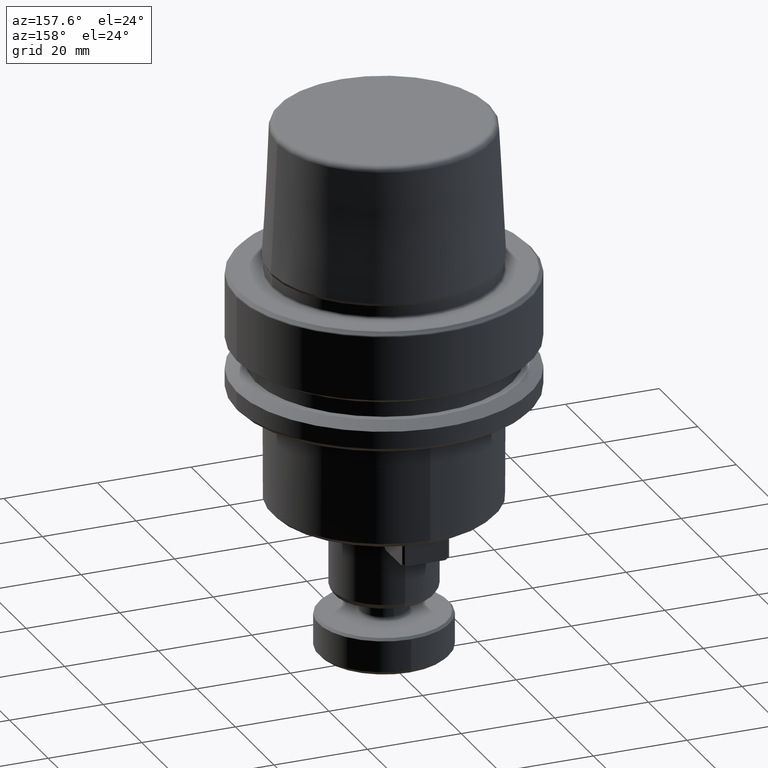
[diagram: clean part render]
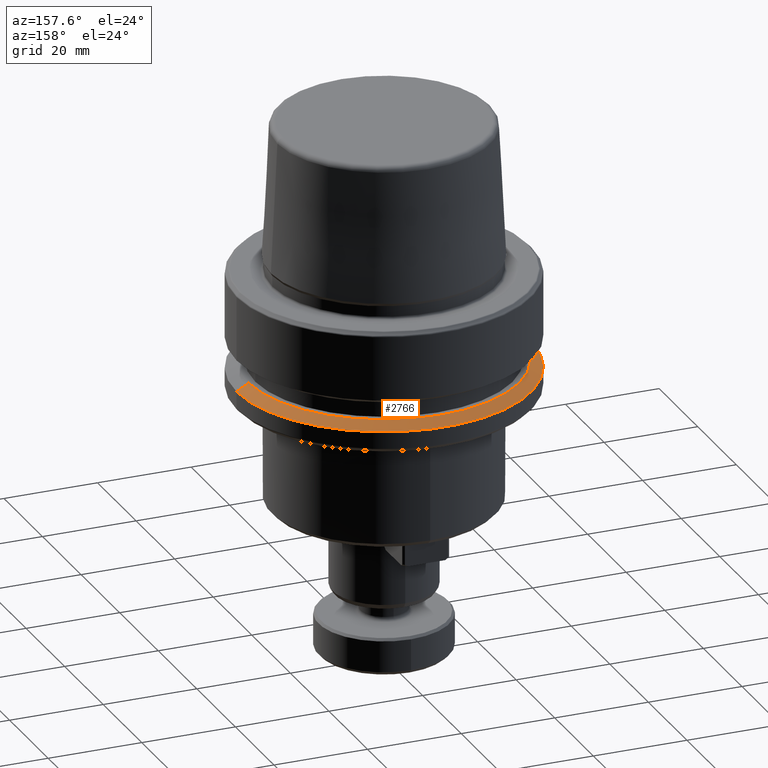
[diagram: same view with one face highlighted and labeled with its STEP entity id]
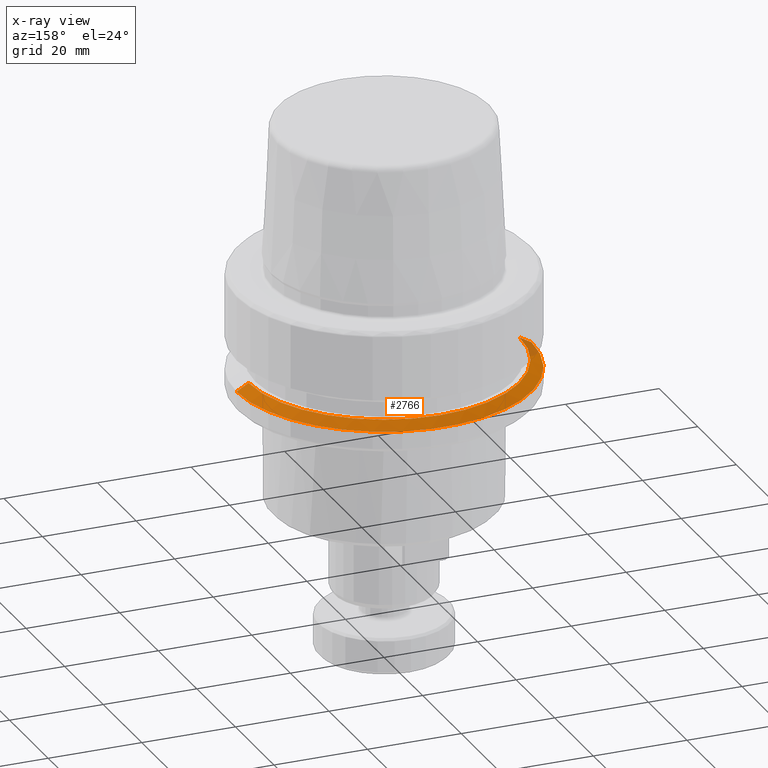
[diagram: x-ray of the same camera — body ghosted, the highlighted face saturated]
A machine part, auxiliary view. The second image highlights one B-rep face of the part: STEP entity #2766.
The next image is the same camera in x-ray: the body ghosted, the highlighted face saturated — about 3% of this face is hidden behind the body in this view.
In plain terms, the highlighted conical surface has half-angle 60 deg.
Its self-contained STEP definition (entity closure, byte-faithful):
#143 = DIRECTION ( 'NONE',  ( -0.8660254037844410400, 0.0000000000000000000, -0.4999999999999958400 ) ) ;
#245 = DIRECTION ( 'NONE',  ( -1.000000000000000000, 0.0000000000000000000, 0.0000000000000000000 ) ) ;
#296 = CARTESIAN_POINT ( 'NONE',  ( 0.0000000000000000000, 0.0000000000000000000, -21.37749907475931700 ) ) ;
#305 = EDGE_CURVE ( 'NONE', #1204, #2134, #2183, .T. ) ;
#393 = DIRECTION ( 'NONE',  ( 1.000000000000000000, 0.0000000000000000000, 0.0000000000000000000 ) ) ;
#408 = DIRECTION ( 'NONE',  ( 1.000000000000000000, 0.0000000000000000000, 0.0000000000000000000 ) ) ;
#424 = AXIS2_PLACEMENT_3D ( 'NONE', #1759, #2264, #408 ) ;
#445 = VECTOR ( 'NONE', #143, 1000.000000000000100 ) ;
#452 = DIRECTION ( 'NONE',  ( 0.8660254037844410400, 1.060575238724909700E-016, -0.4999999999999958400 ) ) ;
#530 = DIRECTION ( 'NONE',  ( 0.0000000000000000000, 0.0000000000000000000, -1.000000000000000000 ) ) ;
#538 = ORIENTED_EDGE ( 'NONE', *, *, #1963, .T. ) ;
#570 = VERTEX_POINT ( 'NONE', #1369 ) ;
#612 = EDGE_LOOP ( 'NONE', ( #1047, #2475, #538, #2454 ) ) ;
#669 = CARTESIAN_POINT ( 'NONE',  ( 28.94089653438085100, 3.700937523921292900E-015, -19.90000000000001600 ) ) ;
#718 = AXIS2_PLACEMENT_3D ( 'NONE', #1806, #1886, #393 ) ;
#728 = VECTOR ( 'NONE', #452, 1000.000000000000100 ) ;
#793 = EDGE_CURVE ( 'NONE', #2134, #570, #2079, .T. ) ;
#908 = EDGE_CURVE ( 'NONE', #1204, #931, #1308, .T. ) ;
#931 = VERTEX_POINT ( 'NONE', #1528 ) ;
#1047 = ORIENTED_EDGE ( 'NONE', *, *, #305, .F. ) ;
#1204 = VERTEX_POINT ( 'NONE', #669 ) ;
#1308 = LINE ( 'NONE', #2468, #728 ) ;
#1369 = CARTESIAN_POINT ( 'NONE',  ( -31.50000000000000000, 3.857637417314162700E-015, -21.37749907475931700 ) ) ;
#1528 = CARTESIAN_POINT ( 'NONE',  ( 31.50000000000000000, 0.0000000000000000000, -21.37749907475931700 ) ) ;
#1618 = CARTESIAN_POINT ( 'NONE',  ( -31.50000000000000000, 0.0000000000000000000, -21.37749907475931700 ) ) ;
#1670 = CARTESIAN_POINT ( 'NONE',  ( -28.94089653438085100, 0.0000000000000000000, -19.90000000000001600 ) ) ;
#1759 = CARTESIAN_POINT ( 'NONE',  ( 0.0000000000000000000, 0.0000000000000000000, -21.37749907475931700 ) ) ;
#1806 = CARTESIAN_POINT ( 'NONE',  ( 0.0000000000000000000, 0.0000000000000000000, -19.90000000000001600 ) ) ;
#1886 = DIRECTION ( 'NONE',  ( -0.0000000000000000000, -0.0000000000000000000, 1.000000000000000000 ) ) ;
#1963 = EDGE_CURVE ( 'NONE', #931, #570, #2257, .T. ) ;
#2037 = AXIS2_PLACEMENT_3D ( 'NONE', #296, #530, #245 ) ;
#2053 = FACE_OUTER_BOUND ( 'NONE', #612, .T. ) ;
#2079 = LINE ( 'NONE', #1618, #445 ) ;
#2134 = VERTEX_POINT ( 'NONE', #1670 ) ;
#2183 = CIRCLE ( 'NONE', #718, 28.94089653438085100 ) ;
#2257 = CIRCLE ( 'NONE', #424, 31.50000000000000000 ) ;
#2264 = DIRECTION ( 'NONE',  ( -0.0000000000000000000, -0.0000000000000000000, 1.000000000000000000 ) ) ;
#2454 = ORIENTED_EDGE ( 'NONE', *, *, #793, .F. ) ;
#2468 = CARTESIAN_POINT ( 'NONE',  ( 31.50000000000000000, 3.857637417314162700E-015, -21.37749907475931700 ) ) ;
#2475 = ORIENTED_EDGE ( 'NONE', *, *, #908, .T. ) ;
#2582 = CONICAL_SURFACE ( 'NONE', #2037, 31.50000000000000000, 1.047197551196602500 ) ;
#2766 = ADVANCED_FACE ( 'NONE', ( #2053 ), #2582, .T. ) ;